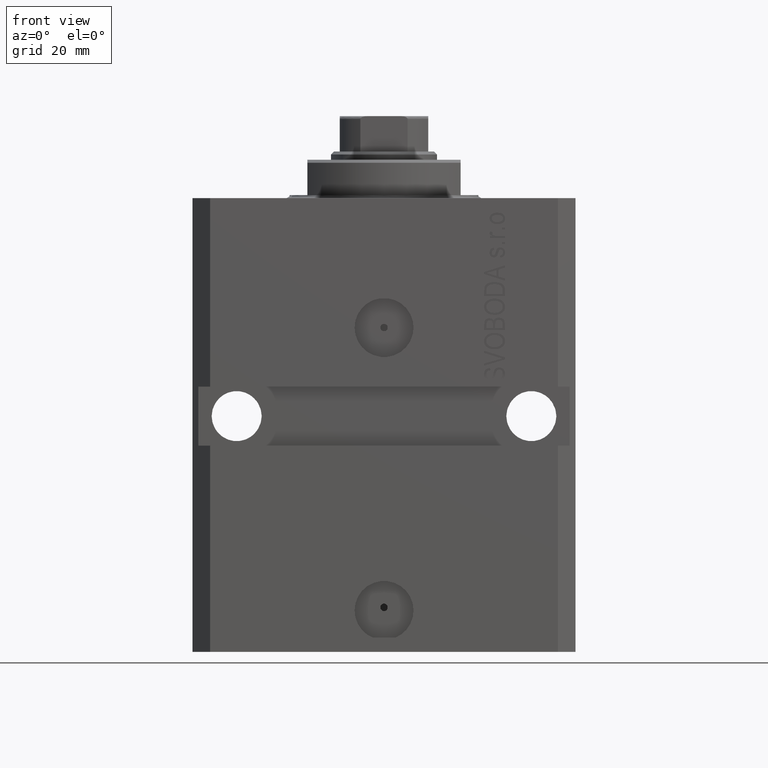
[diagram: clean part render]
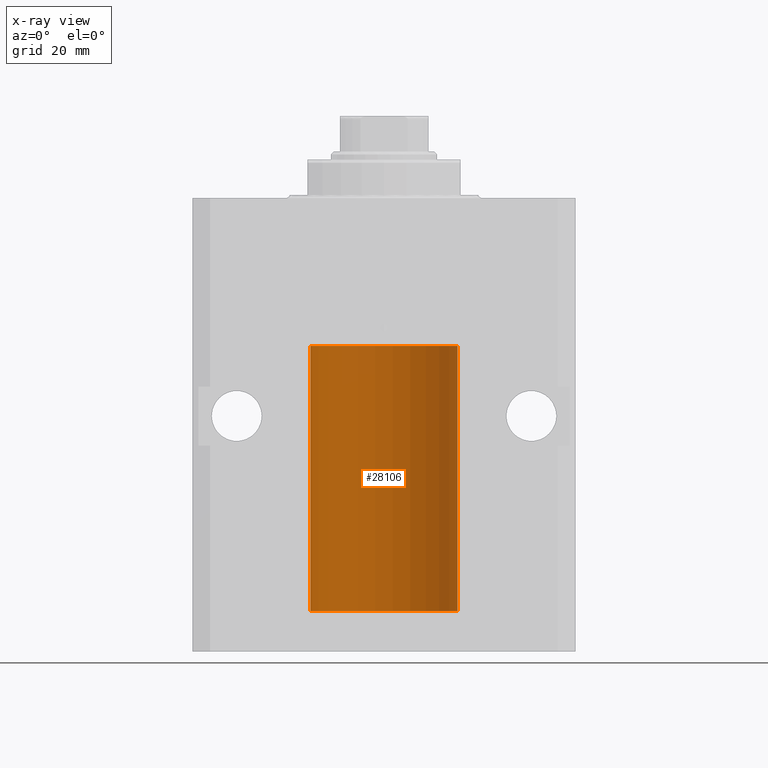
[diagram: x-ray — body ghosted, one internal face saturated and labeled with its STEP entity id]
A machine part, front view, then the same camera in x-ray: the body is ghosted and one INTERNAL B-rep face — a face not visible from any outside direction — is saturated and labeled: STEP entity #28106.
In plain terms, the highlighted cylindrical surface (partial cylindrical patch) has radius 12.5 mm, axis along (0, 0, 1).
Its self-contained STEP definition (entity closure, byte-faithful):
#700 = CARTESIAN_POINT ( 'NONE',  ( 0.000000000000000000, 0.000000000000000000, -70.09999999999999432 ) ) ;
#1629 = AXIS2_PLACEMENT_3D ( 'NONE', #1709, #8865, #23423 ) ;
#1709 = CARTESIAN_POINT ( 'NONE',  ( 0.000000000000000000, 0.000000000000000000, -25.10000000000000142 ) ) ;
#2498 = AXIS2_PLACEMENT_3D ( 'NONE', #700, #3569, #18132 ) ;
#2658 = CYLINDRICAL_SURFACE ( 'NONE', #21192, 12.50000000000000000 ) ;
#3095 = ORIENTED_EDGE ( 'NONE', *, *, #38122, .F. ) ;
#3569 = DIRECTION ( 'NONE',  ( 0.000000000000000000, 0.000000000000000000, 1.000000000000000000 ) ) ;
#6383 = CARTESIAN_POINT ( 'NONE',  ( 12.49625698805481022, 0.3151108292486944906, -65.54593695688173227 ) ) ;
#6701 = FACE_OUTER_BOUND ( 'NONE', #31962, .T. ) ;
#6920 = B_SPLINE_CURVE_WITH_KNOTS ( 'NONE', 3,
 ( #43072, #10365, #33982, #18968, #41386, #19439, #44489, #26815 ),
 .UNSPECIFIED., .F., .F.,
 ( 4, 2, 2, 4 ),
 ( 0.0009773924225142606621, 0.001221629287363811033, 0.001465866152213361404, 0.001954339881912461711 ),
 .UNSPECIFIED. ) ;
#7973 = CARTESIAN_POINT ( 'NONE',  ( 12.50000000000000000, -1.836039810331332019E-15, -65.62500000000000000 ) ) ;
#8865 = DIRECTION ( 'NONE',  ( 0.000000000000000000, 0.000000000000000000, 1.000000000000000000 ) ) ;
#9341 = DIRECTION ( 'NONE',  ( 1.000000000000000000, 0.000000000000000000, 0.000000000000000000 ) ) ;
#9366 = DIRECTION ( 'NONE',  ( -0.000000000000000000, -0.000000000000000000, 1.000000000000000000 ) ) ;
#10365 = CARTESIAN_POINT ( 'NONE',  ( 12.48436522214888100, 0.6249999999996834754, -64.91847339462351840 ) ) ;
#11176 = ORIENTED_EDGE ( 'NONE', *, *, #46349, .T. ) ;
#12634 = ORIENTED_EDGE ( 'NONE', *, *, #27564, .T. ) ;
#12832 = CARTESIAN_POINT ( 'NONE',  ( 12.49421963472024721, 0.3844519291903572555, -65.49947303647046226 ) ) ;
#13011 = VECTOR ( 'NONE', #28615, 1000.000000000000000 ) ;
#15001 = CARTESIAN_POINT ( 'NONE',  ( -12.50000000000000000, 1.530808498934191127E-15, -25.10000000000000142 ) ) ;
#15393 = LINE ( 'NONE', #32582, #24921 ) ;
#16654 = CARTESIAN_POINT ( 'NONE',  ( 12.48436522214846711, 0.6250000000078848039, -64.99999999999923261 ) ) ;
#16852 = EDGE_CURVE ( 'NONE', #27282, #19866, #39081, .T. ) ;
#18132 = DIRECTION ( 'NONE',  ( 1.000000000000000000, 0.000000000000000000, 0.000000000000000000 ) ) ;
#18968 = CARTESIAN_POINT ( 'NONE',  ( 12.48810305280568222, 0.5461368461738485003, -64.68525466142676805 ) ) ;
#19439 = CARTESIAN_POINT ( 'NONE',  ( 12.49631206032076136, 0.3252904079142934779, -64.44139700214927302 ) ) ;
#19866 = VERTEX_POINT ( 'NONE', #43556 ) ;
#20224 = CARTESIAN_POINT ( 'NONE',  ( 12.48809900631782099, 0.5573988467445673001, -65.32640147935475738 ) ) ;
#20387 = CARTESIAN_POINT ( 'NONE',  ( 12.50000000000000000, 0.000000000000000000, -25.10000000000000142 ) ) ;
#20774 = CARTESIAN_POINT ( 'NONE',  ( 12.50000000000000000, 0.000000000000000000, -70.09999999999999432 ) ) ;
#20794 = CARTESIAN_POINT ( 'NONE',  ( 12.50000000000000000, 0.000000000000000000, -70.09999999999999432 ) ) ;
#21192 = AXIS2_PLACEMENT_3D ( 'NONE', #21262, #35800, #9341 ) ;
#21239 = LINE ( 'NONE', #20774, #13011 ) ;
#21262 = CARTESIAN_POINT ( 'NONE',  ( 0.000000000000000000, 0.000000000000000000, -70.09999999999999432 ) ) ;
#22150 = EDGE_CURVE ( 'NONE', #45046, #23191, #22962, .T. ) ;
#22206 = CIRCLE ( 'NONE', #1629, 12.50000000000000000 ) ;
#22962 = B_SPLINE_CURVE_WITH_KNOTS ( 'NONE', 3,
 ( #24504, #39073, #30968, #6383, #12832, #20224, #34780, #16654 ),
 .UNSPECIFIED., .F., .F.,
 ( 4, 2, 2, 4 ),
 ( 1.784246692340212412E-18, 0.0002443481056285665750, 0.0004886962112571313068, 0.0009773924225142606621 ),
 .UNSPECIFIED. ) ;
#23191 = VERTEX_POINT ( 'NONE', #30421 ) ;
#23423 = DIRECTION ( 'NONE',  ( 1.000000000000000000, 0.000000000000000000, 0.000000000000000000 ) ) ;
#23914 = LINE ( 'NONE', #42058, #33601 ) ;
#24080 = VERTEX_POINT ( 'NONE', #20387 ) ;
#24504 = CARTESIAN_POINT ( 'NONE',  ( 12.50000000000000000, -1.836039810331332019E-15, -65.62500000000000000 ) ) ;
#24921 = VECTOR ( 'NONE', #44509, 1000.000000000000000 ) ;
#25825 = ORIENTED_EDGE ( 'NONE', *, *, #39969, .T. ) ;
#26815 = CARTESIAN_POINT ( 'NONE',  ( 12.50000000000017941, 3.868073689162038701E-13, -64.37499999999640465 ) ) ;
#27282 = VERTEX_POINT ( 'NONE', #20794 ) ;
#27564 = EDGE_CURVE ( 'NONE', #29237, #24080, #15393, .T. ) ;
#28106 = ADVANCED_FACE ( 'NONE', ( #6701 ), #2658, .F. ) ;
#28615 = DIRECTION ( 'NONE',  ( -0.000000000000000000, -0.000000000000000000, 1.000000000000000000 ) ) ;
#29237 = VERTEX_POINT ( 'NONE', #37576 ) ;
#30421 = CARTESIAN_POINT ( 'NONE',  ( 12.48436522214846711, 0.6250000000078848039, -64.99999999999923261 ) ) ;
#30968 = CARTESIAN_POINT ( 'NONE',  ( 12.49915742890631876, 0.1636982395582385896, -65.60872397847025184 ) ) ;
#31962 = EDGE_LOOP ( 'NONE', ( #3095, #40692, #41564, #46454, #11176, #12634, #25825 ) ) ;
#32582 = CARTESIAN_POINT ( 'NONE',  ( 12.50000000000000000, 0.000000000000000000, -70.09999999999999432 ) ) ;
#33601 = VECTOR ( 'NONE', #9366, 1000.000000000000000 ) ;
#33982 = CARTESIAN_POINT ( 'NONE',  ( 12.48520578595314845, 0.6087855079133740466, -64.83656717509344958 ) ) ;
#34780 = CARTESIAN_POINT ( 'NONE',  ( 12.48436522214885969, 0.6250000000001505462, -65.16312747540307271 ) ) ;
#35800 = DIRECTION ( 'NONE',  ( -0.000000000000000000, -0.000000000000000000, 1.000000000000000000 ) ) ;
#37576 = CARTESIAN_POINT ( 'NONE',  ( 12.50000000000017941, 3.868073689162038701E-13, -64.37499999999640465 ) ) ;
#38122 = EDGE_CURVE ( 'NONE', #19866, #44508, #23914, .T. ) ;
#39073 = CARTESIAN_POINT ( 'NONE',  ( 12.49999999999999822, 0.08262306818362624705, -65.62500000000000000 ) ) ;
#39081 = CIRCLE ( 'NONE', #2498, 12.50000000000000000 ) ;
#39266 = EDGE_CURVE ( 'NONE', #27282, #45046, #21239, .T. ) ;
#39969 = EDGE_CURVE ( 'NONE', #24080, #44508, #22206, .T. ) ;
#40692 = ORIENTED_EDGE ( 'NONE', *, *, #16852, .F. ) ;
#41386 = CARTESIAN_POINT ( 'NONE',  ( 12.49012055744648997, 0.5002956126656082914, -64.61641710202404454 ) ) ;
#41564 = ORIENTED_EDGE ( 'NONE', *, *, #39266, .T. ) ;
#42058 = CARTESIAN_POINT ( 'NONE',  ( -12.50000000000000000, 1.530808498934191127E-15, -70.09999999999999432 ) ) ;
#43072 = CARTESIAN_POINT ( 'NONE',  ( 12.48436522214846711, 0.6250000000078848039, -64.99999999999923261 ) ) ;
#43556 = CARTESIAN_POINT ( 'NONE',  ( -12.50000000000000000, 1.530808498934191127E-15, -70.09999999999999432 ) ) ;
#44489 = CARTESIAN_POINT ( 'NONE',  ( 12.49999999999999822, 0.1631389616600901760, -64.37500000000022737 ) ) ;
#44508 = VERTEX_POINT ( 'NONE', #15001 ) ;
#44509 = DIRECTION ( 'NONE',  ( -0.000000000000000000, -0.000000000000000000, 1.000000000000000000 ) ) ;
#45046 = VERTEX_POINT ( 'NONE', #7973 ) ;
#46349 = EDGE_CURVE ( 'NONE', #23191, #29237, #6920, .T. ) ;
#46454 = ORIENTED_EDGE ( 'NONE', *, *, #22150, .T. ) ;